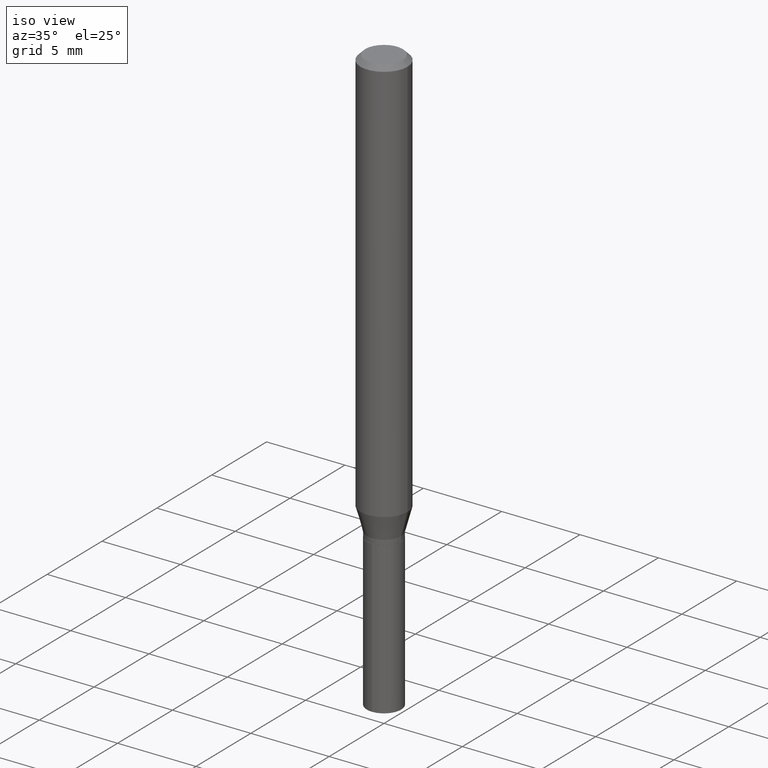
[diagram: clean part render]
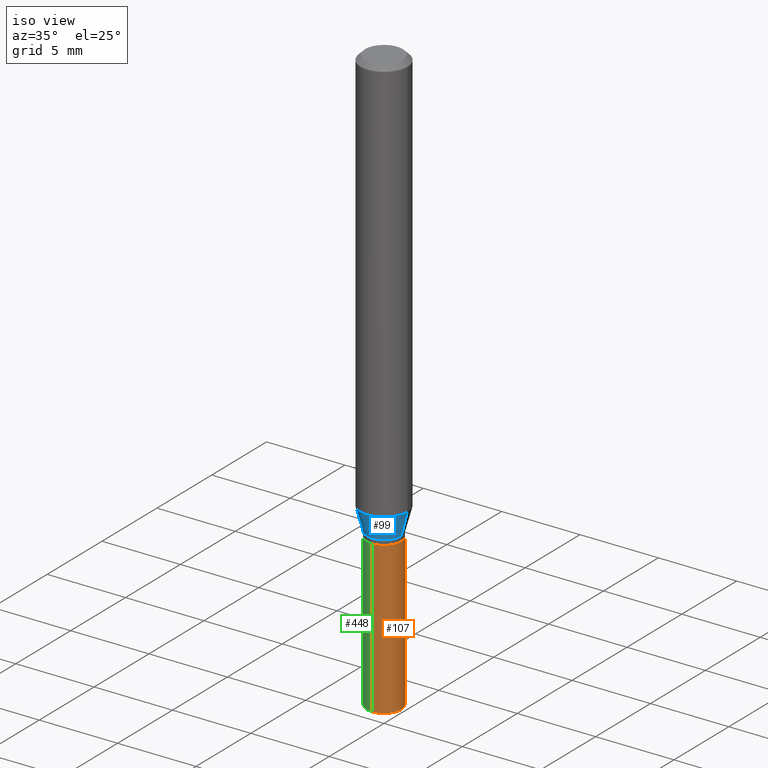
[diagram: same view with three faces highlighted in distinct colors, each labeled with its STEP entity id]
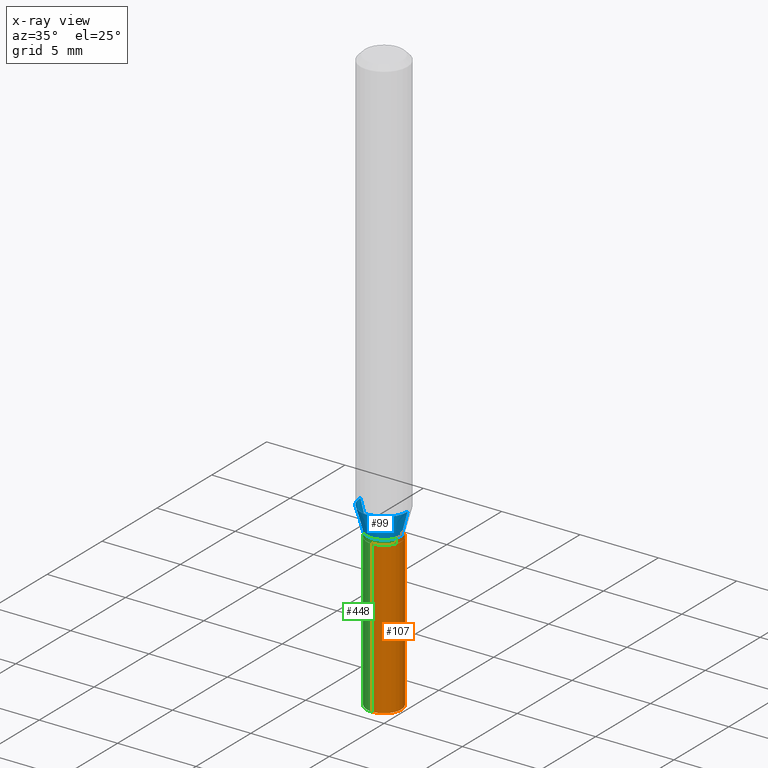
[diagram: x-ray of the same camera — body ghosted, the three highlighted faces saturated]
A machine part, iso view with three faces highlighted in distinct colors.
The next image is the same camera in x-ray (body ghosted, the three faces saturated) — at least one of them is partly hidden behind the body in this view.
Their STEP definitions:

[orange] entity #107 — the highlighted cylindrical surface (edge-blend (fillet) strip) has radius 1.0998 mm, axis along (-0, 0, 1).
#7 = FACE_OUTER_BOUND ( 'NONE', #115, .T. ) ;
#13 = DIRECTION ( 'NONE',  ( -2.445458899330790108E-29, 3.491495526022433205E-15, 1.000000000000000000 ) ) ;
#18 = CARTESIAN_POINT ( 'NONE',  ( -3.023622839437885423E-16, -0.04330000000000382154, -1.094499999999999806 ) ) ;
#25 = DIRECTION ( 'NONE',  ( -2.445458899330790108E-29, 3.491495526022433599E-15, 1.000000000000000000 ) ) ;
#26 = EDGE_CURVE ( 'NONE', #435, #177, #450, .T. ) ;
#39 = CARTESIAN_POINT ( 'NONE',  ( 3.076650045841500411E-16, 0.04329999999999616794, -1.094500000000000028 ) ) ;
#42 = DIRECTION ( 'NONE',  ( -6.982962677686265922E-15, -1.000000000000000000, 6.309117768277745325E-15 ) ) ;
#58 = ORIENTED_EDGE ( 'NONE', *, *, #329, .F. ) ;
#80 = CARTESIAN_POINT ( 'NONE',  ( 3.609285344341305369E-29, -5.153113717889251139E-15, -1.475908878401888558 ) ) ;
#92 = DIRECTION ( 'NONE',  ( -2.445458899330790108E-29, 3.491495526022433205E-15, 1.000000000000000000 ) ) ;
#106 = AXIS2_PLACEMENT_3D ( 'NONE', #461, #264, #312 ) ;
#107 = ADVANCED_FACE ( 'NONE', ( #7 ), #128, .T. ) ;
#115 = EDGE_LOOP ( 'NONE', ( #407, #485, #254, #58 ) ) ;
#121 = CARTESIAN_POINT ( 'NONE',  ( 3.076650045841594582E-16, 0.04329999999999616794, -1.094500000000000028 ) ) ;
#128 = CYLINDRICAL_SURFACE ( 'NONE', #194, 0.04329999999999999127 ) ;
#164 = AXIS2_PLACEMENT_3D ( 'NONE', #80, #92, #42 ) ;
#177 = VERTEX_POINT ( 'NONE', #428 ) ;
#184 = VERTEX_POINT ( 'NONE', #18 ) ;
#194 = AXIS2_PLACEMENT_3D ( 'NONE', #224, #13, #265 ) ;
#195 = DIRECTION ( 'NONE',  ( -2.445458899330790108E-29, 3.491495526022433599E-15, 1.000000000000000000 ) ) ;
#204 = CARTESIAN_POINT ( 'NONE',  ( -3.023622839437885423E-16, -0.04330000000000382154, -1.094499999999999806 ) ) ;
#215 = LINE ( 'NONE', #204, #326 ) ;
#224 = CARTESIAN_POINT ( 'NONE',  ( 2.676565608369631794E-29, -3.821426325363822773E-15, -1.094499999999999806 ) ) ;
#254 = ORIENTED_EDGE ( 'NONE', *, *, #400, .F. ) ;
#263 = CIRCLE ( 'NONE', #106, 0.04329999999999999127 ) ;
#264 = DIRECTION ( 'NONE',  ( -2.445458899330790108E-29, 3.491495526022433205E-15, 1.000000000000000000 ) ) ;
#265 = DIRECTION ( 'NONE',  ( -6.982962677686265922E-15, -1.000000000000000000, 3.154558884138872662E-15 ) ) ;
#292 = LINE ( 'NONE', #39, #331 ) ;
#312 = DIRECTION ( 'NONE',  ( -6.982962677686265922E-15, -1.000000000000000000, 3.154558884138872662E-15 ) ) ;
#326 = VECTOR ( 'NONE', #25, 39.37007874015748143 ) ;
#329 = EDGE_CURVE ( 'NONE', #435, #184, #215, .T. ) ;
#331 = VECTOR ( 'NONE', #195, 39.37007874015748143 ) ;
#349 = CARTESIAN_POINT ( 'NONE',  ( -3.023622839437791746E-16, -0.04330000000000513993, -1.475908878401888336 ) ) ;
#400 = EDGE_CURVE ( 'NONE', #184, #409, #263, .T. ) ;
#407 = ORIENTED_EDGE ( 'NONE', *, *, #26, .T. ) ;
#409 = VERTEX_POINT ( 'NONE', #121 ) ;
#417 = EDGE_CURVE ( 'NONE', #177, #409, #292, .T. ) ;
#428 = CARTESIAN_POINT ( 'NONE',  ( 3.076650045841593596E-16, 0.04329999999999483568, -1.475908878401888780 ) ) ;
#435 = VERTEX_POINT ( 'NONE', #349 ) ;
#450 = CIRCLE ( 'NONE', #164, 0.04329999999999999127 ) ;
#461 = CARTESIAN_POINT ( 'NONE',  ( 2.676565608369631794E-29, -3.821426325363822773E-15, -1.094499999999999806 ) ) ;
#485 = ORIENTED_EDGE ( 'NONE', *, *, #417, .T. ) ;

[blue] entity #99 — the highlighted conical surface has half-angle 15 deg.
#2 = FACE_OUTER_BOUND ( 'NONE', #75, .T. ) ;
#10 = CARTESIAN_POINT ( 'NONE',  ( 0.04329999999999999127, -4.078399351902677565E-15, -1.081499999999999906 ) ) ;
#24 = VERTEX_POINT ( 'NONE', #10 ) ;
#60 = CARTESIAN_POINT ( 'NONE',  ( 0.05905000000000013016, -3.983152438509936021E-15, -1.022720199780789763 ) ) ;
#61 = CIRCLE ( 'NONE', #319, 0.05905000000000013016 ) ;
#63 = DIRECTION ( 'NONE',  ( 1.000000000000000000, -6.982962677686269866E-15, 0.000000000000000000 ) ) ;
#75 = EDGE_LOOP ( 'NONE', ( #248, #413, #490, #404 ) ) ;
#87 = LINE ( 'NONE', #298, #297 ) ;
#99 = ADVANCED_FACE ( 'NONE', ( #2 ), #273, .T. ) ;
#157 = CARTESIAN_POINT ( 'NONE',  ( 2.644774513889225122E-29, -3.776037067958862103E-15, -1.081499999999999906 ) ) ;
#171 = EDGE_CURVE ( 'NONE', #250, #285, #61, .T. ) ;
#183 = AXIS2_PLACEMENT_3D ( 'NONE', #207, #237, #63 ) ;
#207 = CARTESIAN_POINT ( 'NONE',  ( 2.644774513889225122E-29, -3.776037067958862103E-15, -1.081499999999999906 ) ) ;
#237 = DIRECTION ( 'NONE',  ( -2.445468806185136597E-29, 3.491481338843145583E-15, 1.000000000000000000 ) ) ;
#246 = DIRECTION ( 'NONE',  ( 1.000000000000000000, -6.982962677686265133E-15, 0.000000000000000000 ) ) ;
#247 = EDGE_CURVE ( 'NONE', #300, #250, #470, .T. ) ;
#248 = ORIENTED_EDGE ( 'NONE', *, *, #247, .F. ) ;
#250 = VERTEX_POINT ( 'NONE', #320 ) ;
#258 = DIRECTION ( 'NONE',  ( -2.445468806185136597E-29, 3.491481338843145583E-15, 1.000000000000000000 ) ) ;
#273 = CONICAL_SURFACE ( 'NONE', #348, 0.04329999999999999127, 0.2617993877991497964 ) ;
#285 = VERTEX_POINT ( 'NONE', #60 ) ;
#297 = VECTOR ( 'NONE', #454, 39.37007874015748143 ) ;
#298 = CARTESIAN_POINT ( 'NONE',  ( 0.04329999999999999127, -4.078399351902677565E-15, -1.081499999999999906 ) ) ;
#300 = VERTEX_POINT ( 'NONE', #436 ) ;
#313 = DIRECTION ( 'NONE',  ( -2.445468806185136597E-29, 3.491481338843145583E-15, 1.000000000000000000 ) ) ;
#319 = AXIS2_PLACEMENT_3D ( 'NONE', #477, #313, #246 ) ;
#320 = CARTESIAN_POINT ( 'NONE',  ( -0.05905000000000013016, -3.151233006926221213E-15, -1.022720199780789763 ) ) ;
#325 = EDGE_CURVE ( 'NONE', #300, #24, #421, .T. ) ;
#348 = AXIS2_PLACEMENT_3D ( 'NONE', #157, #258, #462 ) ;
#358 = DIRECTION ( 'NONE',  ( -0.2588190451025211281, 5.211531920934548675E-15, 0.9659258262890682012 ) ) ;
#382 = VECTOR ( 'NONE', #358, 39.37007874015748143 ) ;
#399 = CARTESIAN_POINT ( 'NONE',  ( -0.04329999999999999127, -3.468372063374738686E-15, -1.081499999999999906 ) ) ;
#404 = ORIENTED_EDGE ( 'NONE', *, *, #171, .F. ) ;
#406 = EDGE_CURVE ( 'NONE', #24, #285, #87, .T. ) ;
#413 = ORIENTED_EDGE ( 'NONE', *, *, #325, .T. ) ;
#421 = CIRCLE ( 'NONE', #183, 0.04329999999999999127 ) ;
#436 = CARTESIAN_POINT ( 'NONE',  ( -0.04329999999999999127, -3.490193821742507875E-15, -1.081499999999999906 ) ) ;
#454 = DIRECTION ( 'NONE',  ( 0.2588190451025211281, 1.565188264969623940E-15, 0.9659258262890682012 ) ) ;
#462 = DIRECTION ( 'NONE',  ( 1.000000000000000000, -6.982962677686269866E-15, 0.000000000000000000 ) ) ;
#470 = LINE ( 'NONE', #399, #382 ) ;
#477 = CARTESIAN_POINT ( 'NONE',  ( 2.501030346019352130E-29, -3.570808492392561101E-15, -1.022720199780789763 ) ) ;
#490 = ORIENTED_EDGE ( 'NONE', *, *, #406, .T. ) ;

[green] entity #448 — the highlighted cylindrical surface (edge-blend (fillet) strip) has radius 1.0998 mm, axis along (-0, 0, 1).
#18 = CARTESIAN_POINT ( 'NONE',  ( -3.023622839437885423E-16, -0.04330000000000382154, -1.094499999999999806 ) ) ;
#25 = DIRECTION ( 'NONE',  ( -2.445458899330790108E-29, 3.491495526022433599E-15, 1.000000000000000000 ) ) ;
#39 = CARTESIAN_POINT ( 'NONE',  ( 3.076650045841500411E-16, 0.04329999999999616794, -1.094500000000000028 ) ) ;
#52 = CYLINDRICAL_SURFACE ( 'NONE', #430, 0.04329999999999999127 ) ;
#56 = DIRECTION ( 'NONE',  ( -6.982962677686265922E-15, -1.000000000000000000, 3.154558884138872662E-15 ) ) ;
#67 = ORIENTED_EDGE ( 'NONE', *, *, #394, .T. ) ;
#98 = CARTESIAN_POINT ( 'NONE',  ( 3.609285344341305369E-29, -5.153113717889251139E-15, -1.475908878401888558 ) ) ;
#121 = CARTESIAN_POINT ( 'NONE',  ( 3.076650045841594582E-16, 0.04329999999999616794, -1.094500000000000028 ) ) ;
#130 = FACE_OUTER_BOUND ( 'NONE', #243, .T. ) ;
#161 = DIRECTION ( 'NONE',  ( -2.445458899330790108E-29, 3.491495526022433205E-15, 1.000000000000000000 ) ) ;
#177 = VERTEX_POINT ( 'NONE', #428 ) ;
#184 = VERTEX_POINT ( 'NONE', #18 ) ;
#188 = ORIENTED_EDGE ( 'NONE', *, *, #376, .F. ) ;
#195 = DIRECTION ( 'NONE',  ( -2.445458899330790108E-29, 3.491495526022433599E-15, 1.000000000000000000 ) ) ;
#204 = CARTESIAN_POINT ( 'NONE',  ( -3.023622839437885423E-16, -0.04330000000000382154, -1.094499999999999806 ) ) ;
#213 = CIRCLE ( 'NONE', #308, 0.04329999999999999127 ) ;
#215 = LINE ( 'NONE', #204, #326 ) ;
#231 = DIRECTION ( 'NONE',  ( -2.445458899330790108E-29, 3.491495526022433205E-15, 1.000000000000000000 ) ) ;
#243 = EDGE_LOOP ( 'NONE', ( #403, #67, #253, #188 ) ) ;
#253 = ORIENTED_EDGE ( 'NONE', *, *, #329, .T. ) ;
#268 = DIRECTION ( 'NONE',  ( -2.445458899330790108E-29, 3.491495526022433205E-15, 1.000000000000000000 ) ) ;
#292 = LINE ( 'NONE', #39, #331 ) ;
#302 = CARTESIAN_POINT ( 'NONE',  ( 2.676565608369631794E-29, -3.821426325363822773E-15, -1.094499999999999806 ) ) ;
#308 = AXIS2_PLACEMENT_3D ( 'NONE', #458, #161, #56 ) ;
#326 = VECTOR ( 'NONE', #25, 39.37007874015748143 ) ;
#329 = EDGE_CURVE ( 'NONE', #435, #184, #215, .T. ) ;
#331 = VECTOR ( 'NONE', #195, 39.37007874015748143 ) ;
#349 = CARTESIAN_POINT ( 'NONE',  ( -3.023622839437791746E-16, -0.04330000000000513993, -1.475908878401888336 ) ) ;
#376 = EDGE_CURVE ( 'NONE', #409, #184, #213, .T. ) ;
#390 = DIRECTION ( 'NONE',  ( -6.982962677686265922E-15, -1.000000000000000000, 6.309117768277745325E-15 ) ) ;
#394 = EDGE_CURVE ( 'NONE', #177, #435, #488, .T. ) ;
#403 = ORIENTED_EDGE ( 'NONE', *, *, #417, .F. ) ;
#409 = VERTEX_POINT ( 'NONE', #121 ) ;
#417 = EDGE_CURVE ( 'NONE', #177, #409, #292, .T. ) ;
#424 = DIRECTION ( 'NONE',  ( -6.982962677686265922E-15, -1.000000000000000000, 3.154558884138872662E-15 ) ) ;
#428 = CARTESIAN_POINT ( 'NONE',  ( 3.076650045841593596E-16, 0.04329999999999483568, -1.475908878401888780 ) ) ;
#430 = AXIS2_PLACEMENT_3D ( 'NONE', #302, #231, #424 ) ;
#435 = VERTEX_POINT ( 'NONE', #349 ) ;
#448 = ADVANCED_FACE ( 'NONE', ( #130 ), #52, .T. ) ;
#451 = AXIS2_PLACEMENT_3D ( 'NONE', #98, #268, #390 ) ;
#458 = CARTESIAN_POINT ( 'NONE',  ( 2.676565608369631794E-29, -3.821426325363822773E-15, -1.094499999999999806 ) ) ;
#488 = CIRCLE ( 'NONE', #451, 0.04329999999999999127 ) ;